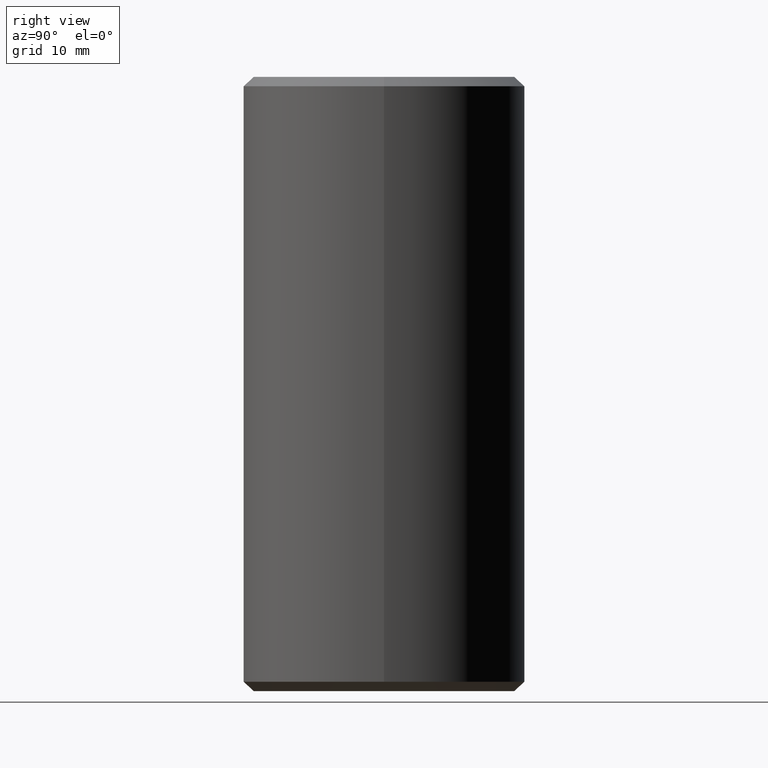
[diagram: clean part render]
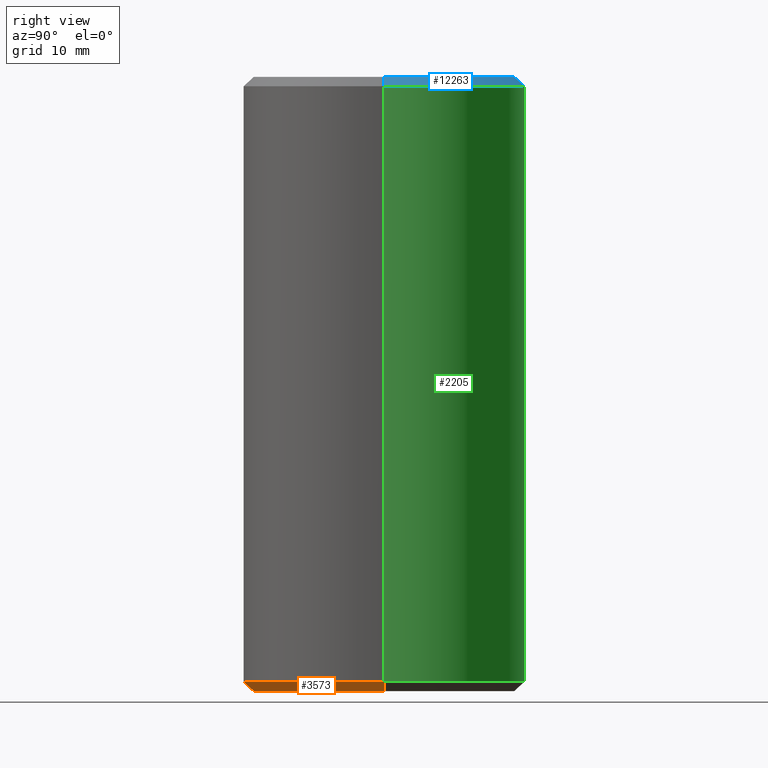
[diagram: same view with three faces highlighted in distinct colors, each labeled with its STEP entity id]
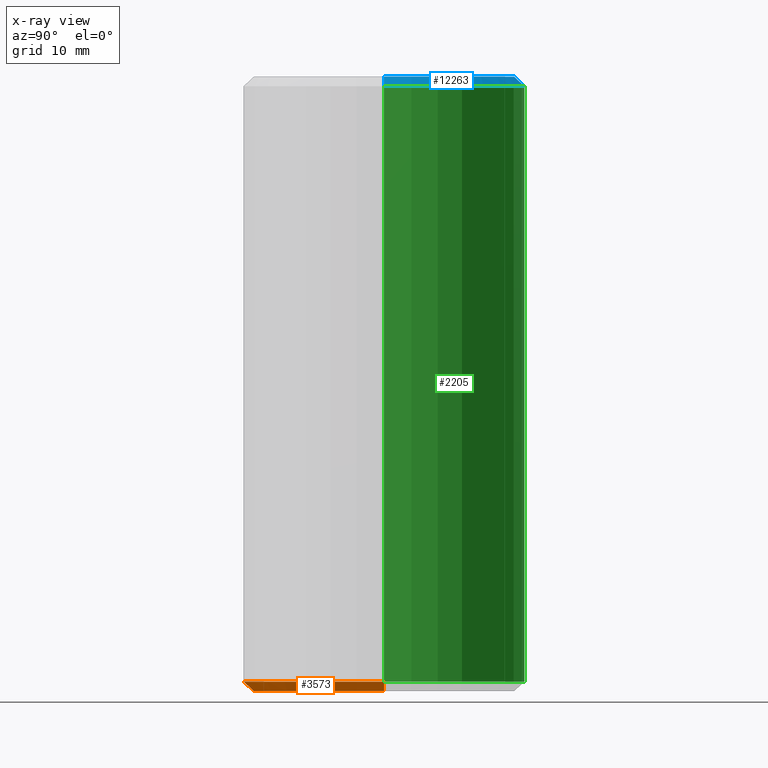
[diagram: x-ray of the same camera — body ghosted, the three highlighted faces saturated]
A machine part, right view with three faces highlighted in distinct colors.
The next image is the same camera in x-ray (body ghosted, the three faces saturated) — at least one of them is partly hidden behind the body in this view.
Their STEP definitions:

[orange] entity #3573 — the highlighted conical surface has half-angle 45 deg.
#135 = EDGE_LOOP ( 'NONE', ( #4054, #10528, #2324, #10261 ) ) ;
#162 = VERTEX_POINT ( 'NONE', #7058 ) ;
#626 = CARTESIAN_POINT ( 'NONE',  ( -14.85000000000000100, 1.818600496733819900E-015, -31.50000000000000000 ) ) ;
#840 = CARTESIAN_POINT ( 'NONE',  ( 0.0000000000000000000, 0.0000000000000000000, -31.50000000000000000 ) ) ;
#1403 = CARTESIAN_POINT ( 'NONE',  ( 13.85000000000000100, 0.0000000000000000000, -32.50000000000000000 ) ) ;
#1524 = FACE_OUTER_BOUND ( 'NONE', #135, .T. ) ;
#1910 = DIRECTION ( 'NONE',  ( 1.000000000000000000, 0.0000000000000000000, 0.0000000000000000000 ) ) ;
#2179 = EDGE_CURVE ( 'NONE', #11820, #9610, #9955, .T. ) ;
#2324 = ORIENTED_EDGE ( 'NONE', *, *, #2179, .T. ) ;
#2468 = LINE ( 'NONE', #626, #11058 ) ;
#2708 = CIRCLE ( 'NONE', #9038, 13.85000000000000100 ) ;
#3573 = ADVANCED_FACE ( 'NONE', ( #1524 ), #6473, .T. ) ;
#4054 = ORIENTED_EDGE ( 'NONE', *, *, #6445, .F. ) ;
#4710 = DIRECTION ( 'NONE',  ( -0.0000000000000000000, -0.0000000000000000000, 1.000000000000000000 ) ) ;
#4792 = CARTESIAN_POINT ( 'NONE',  ( 0.0000000000000000000, 0.0000000000000000000, -31.50000000000000000 ) ) ;
#4916 = VERTEX_POINT ( 'NONE', #9352 ) ;
#6445 = EDGE_CURVE ( 'NONE', #4916, #162, #2468, .T. ) ;
#6466 = EDGE_CURVE ( 'NONE', #162, #9610, #10430, .T. ) ;
#6473 = CONICAL_SURFACE ( 'NONE', #8465, 14.85000000000000100, 0.7853981633974482800 ) ;
#6959 = VECTOR ( 'NONE', #9695, 1000.000000000000100 ) ;
#7057 = DIRECTION ( 'NONE',  ( 1.000000000000000000, 0.0000000000000000000, 0.0000000000000000000 ) ) ;
#7058 = CARTESIAN_POINT ( 'NONE',  ( -14.85000000000000100, 0.0000000000000000000, -31.50000000000000000 ) ) ;
#7145 = DIRECTION ( 'NONE',  ( -0.0000000000000000000, -0.0000000000000000000, -1.000000000000000000 ) ) ;
#7450 = AXIS2_PLACEMENT_3D ( 'NONE', #840, #9457, #12235 ) ;
#8465 = AXIS2_PLACEMENT_3D ( 'NONE', #4792, #4710, #1910 ) ;
#8730 = CARTESIAN_POINT ( 'NONE',  ( 14.85000000000000100, 0.0000000000000000000, -31.50000000000000000 ) ) ;
#9038 = AXIS2_PLACEMENT_3D ( 'NONE', #9078, #7145, #7057 ) ;
#9078 = CARTESIAN_POINT ( 'NONE',  ( 0.0000000000000000000, 0.0000000000000000000, -32.50000000000000000 ) ) ;
#9352 = CARTESIAN_POINT ( 'NONE',  ( -13.85000000000000100, 1.757368156776452000E-015, -32.50000000000000000 ) ) ;
#9457 = DIRECTION ( 'NONE',  ( -0.0000000000000000000, -0.0000000000000000000, 1.000000000000000000 ) ) ;
#9610 = VERTEX_POINT ( 'NONE', #10591 ) ;
#9695 = DIRECTION ( 'NONE',  ( 0.7071067811865474600, 0.0000000000000000000, 0.7071067811865474600 ) ) ;
#9955 = LINE ( 'NONE', #8730, #6959 ) ;
#10261 = ORIENTED_EDGE ( 'NONE', *, *, #6466, .F. ) ;
#10430 = CIRCLE ( 'NONE', #7450, 14.85000000000000100 ) ;
#10528 = ORIENTED_EDGE ( 'NONE', *, *, #12044, .F. ) ;
#10591 = CARTESIAN_POINT ( 'NONE',  ( 14.85000000000000100, 1.818600496733819900E-015, -31.50000000000000000 ) ) ;
#11058 = VECTOR ( 'NONE', #12111, 1000.000000000000100 ) ;
#11820 = VERTEX_POINT ( 'NONE', #1403 ) ;
#12044 = EDGE_CURVE ( 'NONE', #11820, #4916, #2708, .T. ) ;
#12111 = DIRECTION ( 'NONE',  ( -0.7071067811865474600, 8.659560562354932900E-017, 0.7071067811865474600 ) ) ;
#12235 = DIRECTION ( 'NONE',  ( 1.000000000000000000, 0.0000000000000000000, 0.0000000000000000000 ) ) ;

[blue] entity #12263 — the highlighted conical surface has half-angle 45 deg.
#605 = ORIENTED_EDGE ( 'NONE', *, *, #3927, .F. ) ;
#659 = CARTESIAN_POINT ( 'NONE',  ( 13.84999999999998700, 1.757368156776451200E-015, 32.50000000000000000 ) ) ;
#1516 = CONICAL_SURFACE ( 'NONE', #9519, 13.84999999999998700, 0.7853981633974517200 ) ;
#1945 = DIRECTION ( 'NONE',  ( 1.000000000000000000, 0.0000000000000000000, 0.0000000000000000000 ) ) ;
#2127 = DIRECTION ( 'NONE',  ( 1.000000000000000000, 0.0000000000000000000, 0.0000000000000000000 ) ) ;
#2228 = CARTESIAN_POINT ( 'NONE',  ( -14.85000000000000100, 0.0000000000000000000, 31.49999999999999300 ) ) ;
#2237 = EDGE_CURVE ( 'NONE', #11926, #2649, #11443, .T. ) ;
#2581 = CARTESIAN_POINT ( 'NONE',  ( 0.0000000000000000000, 0.0000000000000000000, 31.49999999999999300 ) ) ;
#2649 = VERTEX_POINT ( 'NONE', #11652 ) ;
#3245 = CARTESIAN_POINT ( 'NONE',  ( -13.84999999999998700, 0.0000000000000000000, 32.50000000000000000 ) ) ;
#3778 = VERTEX_POINT ( 'NONE', #6770 ) ;
#3826 = CARTESIAN_POINT ( 'NONE',  ( 0.0000000000000000000, 0.0000000000000000000, 32.50000000000000000 ) ) ;
#3927 = EDGE_CURVE ( 'NONE', #6930, #3778, #5313, .T. ) ;
#3935 = CARTESIAN_POINT ( 'NONE',  ( 0.0000000000000000000, 0.0000000000000000000, 32.50000000000000000 ) ) ;
#3960 = VECTOR ( 'NONE', #7243, 1000.000000000000100 ) ;
#4126 = EDGE_CURVE ( 'NONE', #11926, #3778, #4675, .T. ) ;
#4675 = LINE ( 'NONE', #11349, #10523 ) ;
#4682 = FACE_OUTER_BOUND ( 'NONE', #7223, .T. ) ;
#4696 = AXIS2_PLACEMENT_3D ( 'NONE', #3935, #6825, #2127 ) ;
#5313 = CIRCLE ( 'NONE', #12323, 14.85000000000000100 ) ;
#5743 = DIRECTION ( 'NONE',  ( 0.0000000000000000000, 0.0000000000000000000, -1.000000000000000000 ) ) ;
#5832 = ORIENTED_EDGE ( 'NONE', *, *, #4126, .T. ) ;
#6630 = DIRECTION ( 'NONE',  ( 0.0000000000000000000, 0.0000000000000000000, -1.000000000000000000 ) ) ;
#6770 = CARTESIAN_POINT ( 'NONE',  ( 14.85000000000000100, 1.818600496733819900E-015, 31.49999999999999300 ) ) ;
#6825 = DIRECTION ( 'NONE',  ( 0.0000000000000000000, 0.0000000000000000000, 1.000000000000000000 ) ) ;
#6930 = VERTEX_POINT ( 'NONE', #2228 ) ;
#7223 = EDGE_LOOP ( 'NONE', ( #8125, #5832, #605, #9765 ) ) ;
#7243 = DIRECTION ( 'NONE',  ( -0.7071067811865500200, 0.0000000000000000000, -0.7071067811865451300 ) ) ;
#7771 = EDGE_CURVE ( 'NONE', #2649, #6930, #11177, .T. ) ;
#8125 = ORIENTED_EDGE ( 'NONE', *, *, #2237, .F. ) ;
#9519 = AXIS2_PLACEMENT_3D ( 'NONE', #3826, #6630, #9540 ) ;
#9540 = DIRECTION ( 'NONE',  ( -1.000000000000000000, 0.0000000000000000000, 0.0000000000000000000 ) ) ;
#9765 = ORIENTED_EDGE ( 'NONE', *, *, #7771, .F. ) ;
#10523 = VECTOR ( 'NONE', #12406, 1000.000000000000100 ) ;
#11177 = LINE ( 'NONE', #3245, #3960 ) ;
#11349 = CARTESIAN_POINT ( 'NONE',  ( 13.84999999999998700, 1.696135816819082600E-015, 32.50000000000000000 ) ) ;
#11443 = CIRCLE ( 'NONE', #4696, 13.84999999999998700 ) ;
#11652 = CARTESIAN_POINT ( 'NONE',  ( -13.84999999999998700, 0.0000000000000000000, 32.50000000000000000 ) ) ;
#11926 = VERTEX_POINT ( 'NONE', #659 ) ;
#12263 = ADVANCED_FACE ( 'NONE', ( #4682 ), #1516, .T. ) ;
#12323 = AXIS2_PLACEMENT_3D ( 'NONE', #2581, #5743, #1945 ) ;
#12406 = DIRECTION ( 'NONE',  ( 0.7071067811865500200, 8.659560562354963700E-017, -0.7071067811865451300 ) ) ;

[green] entity #2205 — the highlighted cylindrical surface (partial cylindrical patch) has radius 14.85 mm, axis along (-0, -0, -1).
#162 = VERTEX_POINT ( 'NONE', #7058 ) ;
#376 = CYLINDRICAL_SURFACE ( 'NONE', #4041, 14.85000000000000100 ) ;
#429 = DIRECTION ( 'NONE',  ( -0.0000000000000000000, -0.0000000000000000000, 1.000000000000000000 ) ) ;
#603 = DIRECTION ( 'NONE',  ( -0.0000000000000000000, -0.0000000000000000000, -1.000000000000000000 ) ) ;
#1447 = AXIS2_PLACEMENT_3D ( 'NONE', #11948, #429, #6270 ) ;
#1945 = DIRECTION ( 'NONE',  ( 1.000000000000000000, 0.0000000000000000000, 0.0000000000000000000 ) ) ;
#1967 = VECTOR ( 'NONE', #2307, 1000.000000000000000 ) ;
#2205 = ADVANCED_FACE ( 'NONE', ( #7267 ), #376, .T. ) ;
#2228 = CARTESIAN_POINT ( 'NONE',  ( -14.85000000000000100, 0.0000000000000000000, 31.49999999999999300 ) ) ;
#2307 = DIRECTION ( 'NONE',  ( -0.0000000000000000000, -0.0000000000000000000, -1.000000000000000000 ) ) ;
#2581 = CARTESIAN_POINT ( 'NONE',  ( 0.0000000000000000000, 0.0000000000000000000, 31.49999999999999300 ) ) ;
#2681 = ORIENTED_EDGE ( 'NONE', *, *, #7703, .T. ) ;
#3039 = CARTESIAN_POINT ( 'NONE',  ( 14.85000000000000100, 1.818600496733819900E-015, 32.50000000000000000 ) ) ;
#3050 = LINE ( 'NONE', #3039, #4275 ) ;
#3629 = ORIENTED_EDGE ( 'NONE', *, *, #7789, .T. ) ;
#3778 = VERTEX_POINT ( 'NONE', #6770 ) ;
#3927 = EDGE_CURVE ( 'NONE', #6930, #3778, #5313, .T. ) ;
#4014 = DIRECTION ( 'NONE',  ( -0.0000000000000000000, -0.0000000000000000000, -1.000000000000000000 ) ) ;
#4041 = AXIS2_PLACEMENT_3D ( 'NONE', #8111, #603, #4260 ) ;
#4260 = DIRECTION ( 'NONE',  ( -1.000000000000000000, 0.0000000000000000000, 0.0000000000000000000 ) ) ;
#4275 = VECTOR ( 'NONE', #4014, 1000.000000000000000 ) ;
#4995 = LINE ( 'NONE', #7098, #1967 ) ;
#5313 = CIRCLE ( 'NONE', #12323, 14.85000000000000100 ) ;
#5743 = DIRECTION ( 'NONE',  ( 0.0000000000000000000, 0.0000000000000000000, -1.000000000000000000 ) ) ;
#6181 = ORIENTED_EDGE ( 'NONE', *, *, #3927, .T. ) ;
#6270 = DIRECTION ( 'NONE',  ( 1.000000000000000000, 0.0000000000000000000, 0.0000000000000000000 ) ) ;
#6770 = CARTESIAN_POINT ( 'NONE',  ( 14.85000000000000100, 1.818600496733819900E-015, 31.49999999999999300 ) ) ;
#6930 = VERTEX_POINT ( 'NONE', #2228 ) ;
#7058 = CARTESIAN_POINT ( 'NONE',  ( -14.85000000000000100, 0.0000000000000000000, -31.50000000000000000 ) ) ;
#7098 = CARTESIAN_POINT ( 'NONE',  ( -14.85000000000000100, 0.0000000000000000000, 32.50000000000000000 ) ) ;
#7267 = FACE_OUTER_BOUND ( 'NONE', #9684, .T. ) ;
#7486 = ORIENTED_EDGE ( 'NONE', *, *, #11004, .F. ) ;
#7703 = EDGE_CURVE ( 'NONE', #3778, #9610, #3050, .T. ) ;
#7789 = EDGE_CURVE ( 'NONE', #9610, #162, #10721, .T. ) ;
#8111 = CARTESIAN_POINT ( 'NONE',  ( 0.0000000000000000000, 0.0000000000000000000, 32.50000000000000000 ) ) ;
#9610 = VERTEX_POINT ( 'NONE', #10591 ) ;
#9684 = EDGE_LOOP ( 'NONE', ( #6181, #2681, #3629, #7486 ) ) ;
#10591 = CARTESIAN_POINT ( 'NONE',  ( 14.85000000000000100, 1.818600496733819900E-015, -31.50000000000000000 ) ) ;
#10721 = CIRCLE ( 'NONE', #1447, 14.85000000000000100 ) ;
#11004 = EDGE_CURVE ( 'NONE', #6930, #162, #4995, .T. ) ;
#11948 = CARTESIAN_POINT ( 'NONE',  ( 0.0000000000000000000, 0.0000000000000000000, -31.50000000000000000 ) ) ;
#12323 = AXIS2_PLACEMENT_3D ( 'NONE', #2581, #5743, #1945 ) ;